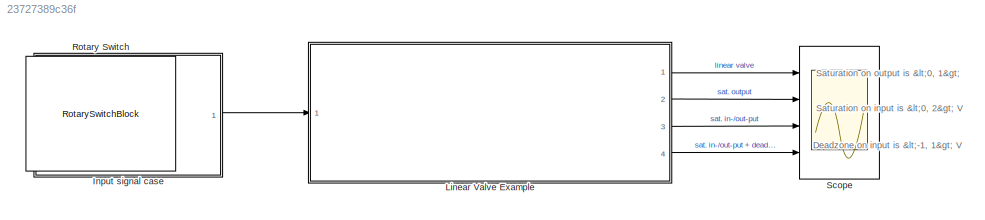
MODEL slx_23727389c36f
KIND model
CONFIG AbsTol = auto
CONFIG EnableMultiTasking = off
CONFIG FixedStep = auto
CONFIG MaxStep = auto
CONFIG MinStep = auto
CONFIG RelTol = 1e-3
CONFIG SampleTimeConstraint = Unconstrained
CONFIG Solver = VariableStepAuto
CONFIG SolverName = VariableStepAuto
CONFIG StartTime = 0.0
CONFIG StopTime = 4
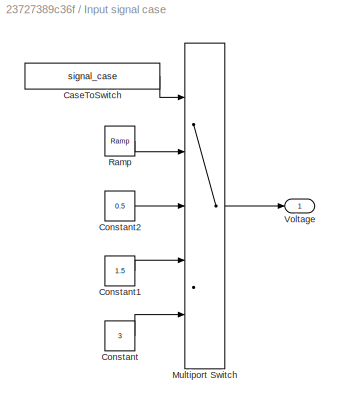
BLOCK [SubSystem] Input signal case
  Ports = [0, 1]
  RequestExecContextInheritance = off
BLOCK [Constant] Input signal case/CaseToSwitch
  Value = signal_case
BLOCK [Constant] Input signal case/Constant
  Value = 3
BLOCK [Constant] Input signal case/Constant1
  Value = 1.5
BLOCK [Constant] Input signal case/Constant2
  Value = 0.5
BLOCK [MultiPortSwitch] Input signal case/Multiport Switch
  InputSameDT = off
  Inputs = 4
  Ports = [5, 1]
  SaturateOnIntegerOverflow = off
BLOCK [Reference] Input signal case/Ramp  REF=simulink/Sources/Ramp
  Ports = [0, 1]
  SourceBlock = simulink/Sources/Ramp
  SourceProductBaseCode = SL
  SourceProductName = Simulink
  SourceType = Ramp
BLOCK [Outport] Input signal case/Voltage
  IconDisplay = Port number
  VectorParamsAs1DForOutWhenUnconnected = off
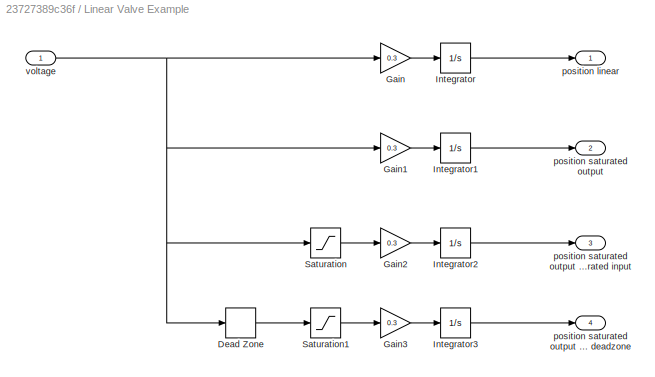
BLOCK [SubSystem] Linear Valve Example
  Ports = [1, 4]
  RequestExecContextInheritance = off
BLOCK [DeadZone] Linear Valve Example/Dead Zone
  LowerValue = -1
  SaturateOnIntegerOverflow = off
  UpperValue = 1
BLOCK [Gain] Linear Valve Example/Gain
  Gain = 0.3
  OutDataTypeStr = Inherit: Inherit via internal rule
  ParamDataTypeStr = Inherit: Inherit via internal rule
  SaturateOnIntegerOverflow = off
BLOCK [Gain] Linear Valve Example/Gain1
  Gain = 0.3
  OutDataTypeStr = Inherit: Inherit via internal rule
  ParamDataTypeStr = Inherit: Inherit via internal rule
  SaturateOnIntegerOverflow = off
BLOCK [Gain] Linear Valve Example/Gain2
  Gain = 0.3
  OutDataTypeStr = Inherit: Inherit via internal rule
  ParamDataTypeStr = Inherit: Inherit via internal rule
  SaturateOnIntegerOverflow = off
BLOCK [Gain] Linear Valve Example/Gain3
  Gain = 0.3
  OutDataTypeStr = Inherit: Inherit via internal rule
  ParamDataTypeStr = Inherit: Inherit via internal rule
  SaturateOnIntegerOverflow = off
BLOCK [Integrator] Linear Valve Example/Integrator
  Ports = [1, 1]
BLOCK [Integrator] Linear Valve Example/Integrator1
  LimitOutput = on
  LowerSaturationLimit = 0
  Ports = [1, 1]
  UpperSaturationLimit = 1
BLOCK [Integrator] Linear Valve Example/Integrator2
  LimitOutput = on
  LowerSaturationLimit = 0
  Ports = [1, 1]
  UpperSaturationLimit = 1
BLOCK [Integrator] Linear Valve Example/Integrator3
  LimitOutput = on
  LowerSaturationLimit = 0
  Ports = [1, 1]
  UpperSaturationLimit = 1
BLOCK [Saturate] Linear Valve Example/Saturation
  InputPortMap = u0
  LowerLimit = 0
  Ports = [1, 1]
  UpperLimit = 2
BLOCK [Saturate] Linear Valve Example/Saturation1
  InputPortMap = u0
  LowerLimit = 0
  Ports = [1, 1]
  UpperLimit = 2
BLOCK [Outport] Linear Valve Example/position linear
  IconDisplay = Port number
  VectorParamsAs1DForOutWhenUnconnected = off
BLOCK [Outport] Linear Valve Example/position saturated output
  IconDisplay = Port number
  Port = 2
  VectorParamsAs1DForOutWhenUnconnected = off
BLOCK [Outport] Linear Valve Example/position saturated output saturated input
  IconDisplay = Port number
  Port = 3
  VectorParamsAs1DForOutWhenUnconnected = off
BLOCK [Outport] Linear Valve Example/position saturated output saturated input deadzone
  IconDisplay = Port number
  Port = 4
  VectorParamsAs1DForOutWhenUnconnected = off
BLOCK [Inport] Linear Valve Example/voltage 
  IconDisplay = Port number
BLOCK [RotarySwitchBlock] Rotary Switch
BLOCK [Scope] Scope
  Floating = off
  NumInputPorts = 4
  Ports = [4]
  ScopeSpecificationString = Simulink.scopes.TimeScopeBlockCfg('CurrentConfiguration', extmgr.ConfigurationSet(extmgr.Configuration('Core','General UI',true),extmgr.Configuration('Core','Source UI',true),extmgr.Configuration('Sources','WiredSimulink',true),extmgr.Configuration('Visuals','Time Domain',true,'SerializedDisplays',{struct('MinYLimReal','-0.3375','MaxYLimReal','3.0375','YLabelReal','','MinYLimMag','0.00000','MaxYLi...<+3475ch>
ANNOTATION (root): Deadzone on input is <-1, 1> V
ANNOTATION (root): Saturation on input is <0, 2> V
ANNOTATION (root): Saturation on output is <0, 1>
LINE Input signal case/CaseToSwitch:1 -> Input signal case/Multiport Switch:1
LINE Input signal case/Constant1:1 -> Input signal case/Multiport Switch:4
LINE Input signal case/Constant2:1 -> Input signal case/Multiport Switch:3
LINE Input signal case/Constant:1 -> Input signal case/Multiport Switch:5
LINE Input signal case/Multiport Switch:1 -> Input signal case/Voltage:1
LINE Input signal case/Ramp:1 -> Input signal case/Multiport Switch:2
LINE Input signal case:1 -> Linear Valve Example:1
LINE Linear Valve Example/Dead Zone:1 -> Linear Valve Example/Saturation1:1
LINE Linear Valve Example/Gain1:1 -> Linear Valve Example/Integrator1:1
LINE Linear Valve Example/Gain2:1 -> Linear Valve Example/Integrator2:1
LINE Linear Valve Example/Gain3:1 -> Linear Valve Example/Integrator3:1
LINE Linear Valve Example/Gain:1 -> Linear Valve Example/Integrator:1
LINE Linear Valve Example/Integrator1:1 -> Linear Valve Example/position saturated output:1
LINE Linear Valve Example/Integrator2:1 -> Linear Valve Example/position saturated output saturated input:1
LINE Linear Valve Example/Integrator3:1 -> Linear Valve Example/position saturated output saturated input deadzone:1
LINE Linear Valve Example/Integrator:1 -> Linear Valve Example/position linear:1
LINE Linear Valve Example/Saturation1:1 -> Linear Valve Example/Gain3:1
LINE Linear Valve Example/Saturation:1 -> Linear Valve Example/Gain2:1
NET Linear Valve Example/voltage :1 -> Linear Valve Example/Dead Zone:1, Linear Valve Example/Gain1:1, Linear Valve Example/Gain:1, Linear Valve Example/Saturation:1
LINE Linear Valve Example:1 -> Scope:1
LINE Linear Valve Example:2 -> Scope:2
LINE Linear Valve Example:3 -> Scope:3
LINE Linear Valve Example:4 -> Scope:4
note: NET lines group one-source signal fan-out (src -> all destinations, sorted); 1:1 wires keep LINE
